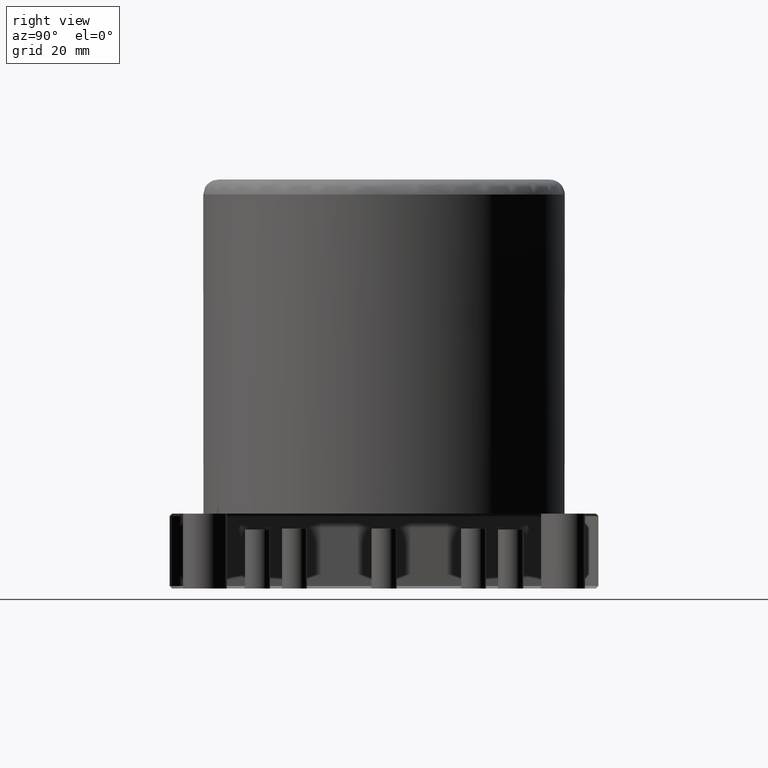
[diagram: clean part render]
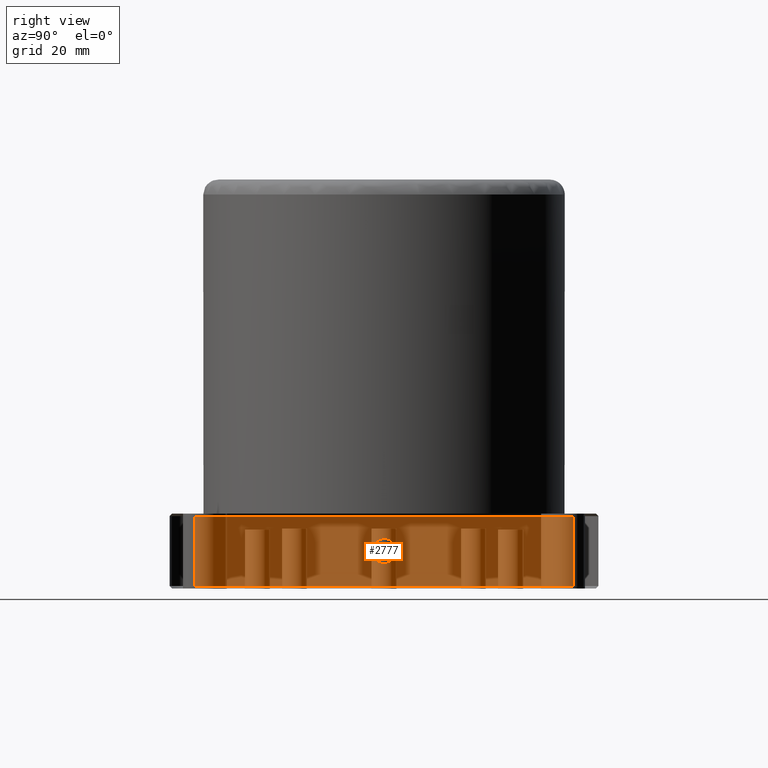
[diagram: same view with one face highlighted and labeled with its STEP entity id]
A machine part, right view. The second image highlights one B-rep face of the part: STEP entity #2777.
In plain terms, the highlighted planar face has unit normal (-1, 0, 0).
Its self-contained STEP definition (entity closure, byte-faithful):
#40 = VERTEX_POINT ( 'NONE', #2204 ) ;
#77 = ORIENTED_EDGE ( 'NONE', *, *, #3027, .T. ) ;
#87 = VECTOR ( 'NONE', #789, 1000.000000000000000 ) ;
#208 = EDGE_CURVE ( 'NONE', #1784, #40, #2100, .T. ) ;
#266 = EDGE_CURVE ( 'NONE', #583, #2028, #2561, .T. ) ;
#329 = DIRECTION ( 'NONE',  ( 0.000000000000000000, 0.000000000000000000, 1.000000000000000000 ) ) ;
#352 = DIRECTION ( 'NONE',  ( 0.000000000000000000, 1.000000000000000000, -0.000000000000000000 ) ) ;
#476 = CARTESIAN_POINT ( 'NONE',  ( 43.00000000000159872, -38.00000000000000000, 0.4999999999970444753 ) ) ;
#499 = LINE ( 'NONE', #2059, #874 ) ;
#583 = VERTEX_POINT ( 'NONE', #3246 ) ;
#630 = EDGE_LOOP ( 'NONE', ( #983, #2419, #2952, #2762 ) ) ;
#659 = CARTESIAN_POINT ( 'NONE',  ( 42.99999999998897238, 38.00000000000001421, 0.4999999999698162556 ) ) ;
#789 = DIRECTION ( 'NONE',  ( 0.000000000000000000, 0.000000000000000000, 1.000000000000000000 ) ) ;
#874 = VECTOR ( 'NONE', #3109, 1000.000000000000000 ) ;
#887 = LINE ( 'NONE', #1955, #2715 ) ;
#983 = ORIENTED_EDGE ( 'NONE', *, *, #2710, .T. ) ;
#1070 = DIRECTION ( 'NONE',  ( -1.000000000000000000, 0.000000000000000000, 0.000000000000000000 ) ) ;
#1400 = EDGE_CURVE ( 'NONE', #1784, #2028, #887, .T. ) ;
#1539 = DIRECTION ( 'NONE',  ( 0.000000000000000000, 0.000000000000000000, -1.000000000000000000 ) ) ;
#1727 = CARTESIAN_POINT ( 'NONE',  ( 43.00000000000000000, 7.480790260892864585E-33, 7.499999999999994671 ) ) ;
#1784 = VERTEX_POINT ( 'NONE', #476 ) ;
#1868 = FACE_BOUND ( 'NONE', #3152, .T. ) ;
#1955 = CARTESIAN_POINT ( 'NONE',  ( 43.00000000000000000, -43.00000000000000000, 0.5000000000000004441 ) ) ;
#1970 = AXIS2_PLACEMENT_3D ( 'NONE', #1727, #2213, #1986 ) ;
#1986 = DIRECTION ( 'NONE',  ( 0.000000000000000000, 0.000000000000000000, -1.000000000000000000 ) ) ;
#2013 = VERTEX_POINT ( 'NONE', #2773 ) ;
#2028 = VERTEX_POINT ( 'NONE', #659 ) ;
#2059 = CARTESIAN_POINT ( 'NONE',  ( 43.00000000000000000, -43.00000000000000000, 14.49999999999999822 ) ) ;
#2100 = LINE ( 'NONE', #3154, #87 ) ;
#2199 = PLANE ( 'NONE',  #2362 ) ;
#2204 = CARTESIAN_POINT ( 'NONE',  ( 43.00000000000000000, -38.00000000000000711, 14.49999999999999822 ) ) ;
#2213 = DIRECTION ( 'NONE',  ( 1.000000000000000000, 0.000000000000000000, 0.000000000000000000 ) ) ;
#2362 = AXIS2_PLACEMENT_3D ( 'NONE', #2977, #1070, #329 ) ;
#2419 = ORIENTED_EDGE ( 'NONE', *, *, #266, .T. ) ;
#2545 = CARTESIAN_POINT ( 'NONE',  ( 43.00000000000000000, 37.99999999999999289, 15.00000000000000000 ) ) ;
#2561 = LINE ( 'NONE', #2545, #3380 ) ;
#2637 = CIRCLE ( 'NONE', #1970, 2.499999999999993339 ) ;
#2710 = EDGE_CURVE ( 'NONE', #40, #583, #499, .T. ) ;
#2715 = VECTOR ( 'NONE', #352, 1000.000000000000000 ) ;
#2762 = ORIENTED_EDGE ( 'NONE', *, *, #208, .T. ) ;
#2773 = CARTESIAN_POINT ( 'NONE',  ( 43.00000000000000000, 7.480790260892864585E-33, 5.000000000000000888 ) ) ;
#2777 = ADVANCED_FACE ( 'NONE', ( #3231, #1868 ), #2199, .T. ) ;
#2952 = ORIENTED_EDGE ( 'NONE', *, *, #1400, .F. ) ;
#2977 = CARTESIAN_POINT ( 'NONE',  ( 43.00000000000000000, -43.00000000000000000, 15.00000000000000000 ) ) ;
#3027 = EDGE_CURVE ( 'NONE', #2013, #2013, #2637, .T. ) ;
#3109 = DIRECTION ( 'NONE',  ( 0.000000000000000000, 1.000000000000000000, -0.000000000000000000 ) ) ;
#3152 = EDGE_LOOP ( 'NONE', ( #77 ) ) ;
#3154 = CARTESIAN_POINT ( 'NONE',  ( 43.00000000000000000, -38.00000000000000000, 15.00000000000000000 ) ) ;
#3231 = FACE_OUTER_BOUND ( 'NONE', #630, .T. ) ;
#3246 = CARTESIAN_POINT ( 'NONE',  ( 42.99999999997316991, 37.99999999999999289, 14.50000000001375611 ) ) ;
#3380 = VECTOR ( 'NONE', #1539, 1000.000000000000000 ) ;